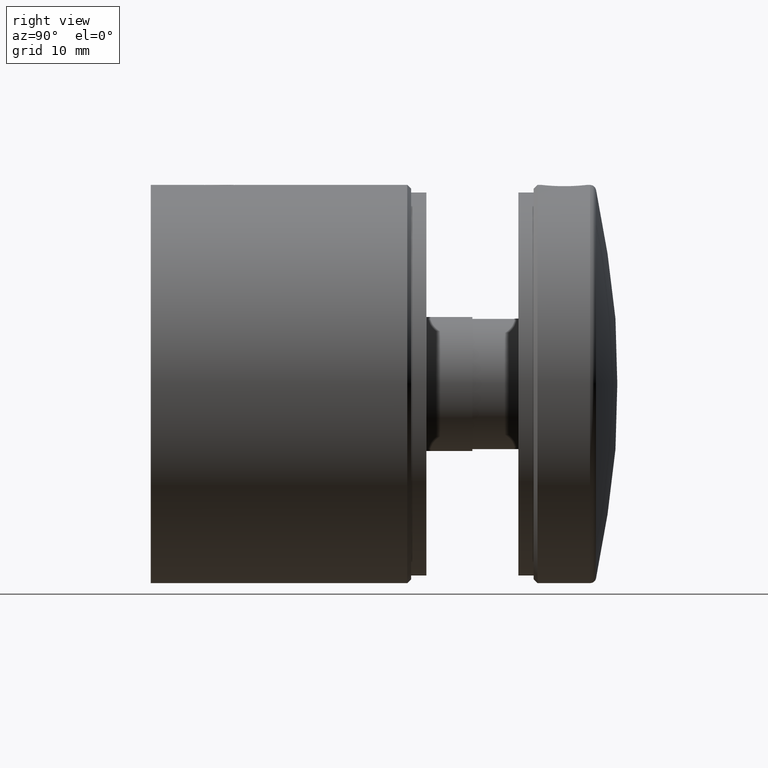
[diagram: clean part render]
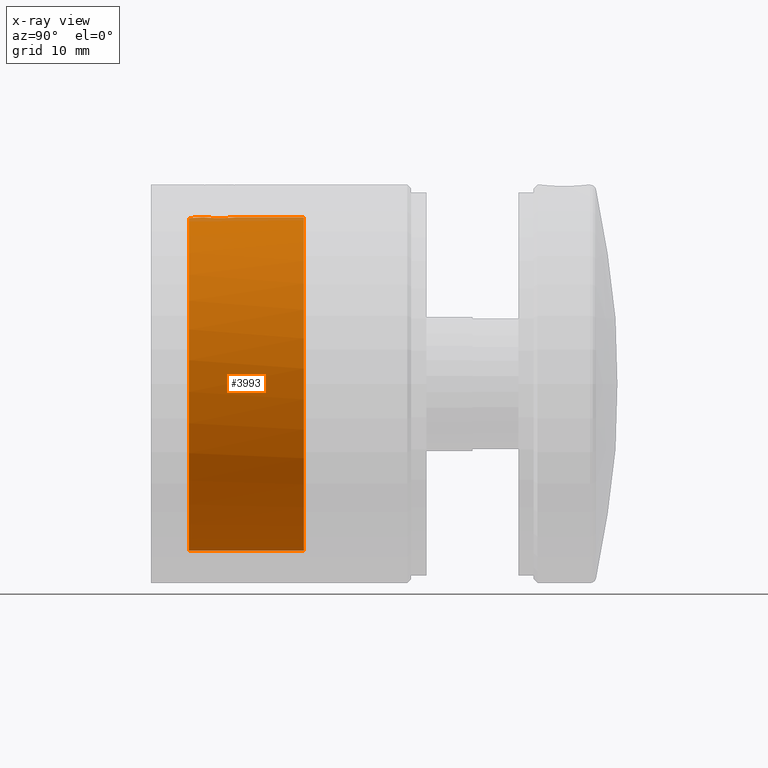
[diagram: x-ray — body ghosted, one internal face saturated and labeled with its STEP entity id]
A machine part, right view, then the same camera in x-ray: the body is ghosted and one INTERNAL B-rep face — a face not visible from any outside direction — is saturated and labeled: STEP entity #3993.
In plain terms, the highlighted cylindrical surface (bore or boss wall) has radius 21.75 mm, axis along (-0, -1, -0).
Its self-contained STEP definition (entity closure, byte-faithful):
#87 = DIRECTION ( 'NONE',  ( 0.000000000000000000, 0.000000000000000000, 1.000000000000000000 ) ) ;
#123 = CARTESIAN_POINT ( 'NONE',  ( 0.000000000000000000, 1.000000000000007772, 0.000000000000000000 ) ) ;
#364 = AXIS2_PLACEMENT_3D ( 'NONE', #1874, #19843, #21648 ) ;
#1025 = AXIS2_PLACEMENT_3D ( 'NONE', #123, #5334, #21714 ) ;
#1249 = CARTESIAN_POINT ( 'NONE',  ( 2.099999999999997868, 5.138822714302124339, 21.64838331146231454 ) ) ;
#1322 = CARTESIAN_POINT ( 'NONE',  ( 1.834164769193666666, 3.941393453948776493, 21.67278129674618725 ) ) ;
#1392 = CARTESIAN_POINT ( 'NONE',  ( 1.677557323868993810, 3.707404910283190524, 21.68607932270053595 ) ) ;
#1471 = CARTESIAN_POINT ( 'NONE',  ( 1.386853782480603092, 3.417158647802673865, 21.70595702399113947 ) ) ;
#1771 = EDGE_LOOP ( 'NONE', ( #2272 ) ) ;
#1874 = CARTESIAN_POINT ( 'NONE',  ( 0.000000000000000000, 0.000000000000000000, 0.000000000000000000 ) ) ;
#2272 = ORIENTED_EDGE ( 'NONE', *, *, #18762, .T. ) ;
#2748 = CARTESIAN_POINT ( 'NONE',  ( -1.582345586245643032, 6.387588446544055998, 21.69258733961678942 ) ) ;
#2915 = CARTESIAN_POINT ( 'NONE',  ( -0.2751048808428505632, 7.086427152041024691, 21.74867734979185130 ) ) ;
#2996 = CARTESIAN_POINT ( 'NONE',  ( 0.2752273321514816518, 7.099850190583571141, 21.74998553564468295 ) ) ;
#3071 = CARTESIAN_POINT ( 'NONE',  ( 2.086370067569942588, 5.275309351184040985, 21.64971775799330445 ) ) ;
#3234 = CARTESIAN_POINT ( 'NONE',  ( 0.9298221290303783082, 3.112040392018067703, 21.73048881496666596 ) ) ;
#3993 = ADVANCED_FACE ( 'NONE', ( #4147, #20759, #7549 ), #4702, .F. ) ;
#4147 = FACE_BOUND ( 'NONE', #20594, .T. ) ;
#4554 = CARTESIAN_POINT ( 'NONE',  ( -1.821326496742648127, 6.054263746972632809, 21.67374199306859950 ) ) ;
#4702 = CYLINDRICAL_SURFACE ( 'NONE', #364, 21.74999999999999289 ) ;
#4712 = CARTESIAN_POINT ( 'NONE',  ( -0.5444946943955960572, 7.032827214500198210, 21.74360077559803983 ) ) ;
#4871 = CARTESIAN_POINT ( 'NONE',  ( 1.050473026080859240, 3.176453429954822827, 21.72491824244271896 ) ) ;
#5166 = VERTEX_POINT ( 'NONE', #16823 ) ;
#5334 = DIRECTION ( 'NONE',  ( -0.000000000000000000, -1.000000000000000000, -0.000000000000000000 ) ) ;
#5816 = CIRCLE ( 'NONE', #17060, 21.74999999999999289 ) ;
#5898 = CARTESIAN_POINT ( 'NONE',  ( 0.000000000000000000, 16.00000000000000000, 21.74999999999999289 ) ) ;
#6294 = CARTESIAN_POINT ( 'NONE',  ( -0.6754374641637941323, 6.993169225652276388, 21.73988222341387200 ) ) ;
#6374 = CARTESIAN_POINT ( 'NONE',  ( -0.1358955096395765283, 7.100074436126980970, 21.75000718693534907 ) ) ;
#6619 = CARTESIAN_POINT ( 'NONE',  ( -0.9297821351355787245, 6.887973652164142813, 21.73049010117087221 ) ) ;
#6692 = CARTESIAN_POINT ( 'NONE',  ( 0.6753324225987497043, 3.006789827440975671, 21.73988591156846084 ) ) ;
#6935 = CARTESIAN_POINT ( 'NONE',  ( -0.9331347341929171479, 3.113684353608795696, 21.73034560432875040 ) ) ;
#7549 = FACE_OUTER_BOUND ( 'NONE', #1771, .T. ) ;
#8119 = CARTESIAN_POINT ( 'NONE',  ( 1.822626473158281080, 6.052073542989715449, 21.67363319944057309 ) ) ;
#8350 = CARTESIAN_POINT ( 'NONE',  ( -2.086159856786573563, 5.277090331791148614, 21.64973828393508981 ) ) ;
#9407 = EDGE_LOOP ( 'NONE', ( #21467 ) ) ;
#9899 = CARTESIAN_POINT ( 'NONE',  ( -1.052659575912668011, 6.822255985429496405, 21.72481029633196670 ) ) ;
#10054 = CARTESIAN_POINT ( 'NONE',  ( 1.581590501153000039, 6.388277296665847871, 21.69263673290183903 ) ) ;
#10139 = CARTESIAN_POINT ( 'NONE',  ( 1.992567059393881568, 5.677214367124503447, 21.65860055147169305 ) ) ;
#10222 = CARTESIAN_POINT ( 'NONE',  ( -2.045121727676634915, 4.450169740814643227, 21.65389103054183551 ) ) ;
#10533 = CARTESIAN_POINT ( 'NONE',  ( -1.281744753354302047, 3.330880715030999806, 21.71250043574855582 ) ) ;
#10602 = CARTESIAN_POINT ( 'NONE',  ( 0.2734553490011445986, 2.913386764543870022, 21.74869547831715977 ) ) ;
#11626 = ORIENTED_EDGE ( 'NONE', *, *, #22502, .T. ) ;
#11963 = CARTESIAN_POINT ( 'NONE',  ( -1.280143908479545622, 6.670311537641098631, 21.71259326215904650 ) ) ;
#12111 = CARTESIAN_POINT ( 'NONE',  ( -1.053646651611794383, 3.178281708453811305, 21.72476406128912885 ) ) ;
#12183 = CARTESIAN_POINT ( 'NONE',  ( 0.1367105962720693846, 2.899868248667024861, 21.75001272081256332 ) ) ;
#13491 = EDGE_CURVE ( 'NONE', #5166, #5166, #14634, .T. ) ;
#13517 = CARTESIAN_POINT ( 'NONE',  ( -1.386202372443735342, 6.583559987472836994, 21.70600391651685257 ) ) ;
#13679 = CARTESIAN_POINT ( 'NONE',  ( 0.5516838227810461071, 7.044615457033726713, 21.74447206496893870 ) ) ;
#13755 = CARTESIAN_POINT ( 'NONE',  ( 1.291146894646880261, 6.678662908253071073, 21.71251039038009267 ) ) ;
#13982 = CARTESIAN_POINT ( 'NONE',  ( -0.5456151976140605209, 2.967503880248212322, 21.74356980566062703 ) ) ;
#14634 = CIRCLE ( 'NONE', #1025, 21.74999999999999289 ) ;
#14930 = CARTESIAN_POINT ( 'NONE',  ( 2.099999999999996980, 4.999999999999999112, 21.64838331146230388 ) ) ;
#15327 = CARTESIAN_POINT ( 'NONE',  ( -1.669212042416140962, 6.281574583616015062, 21.68598748840585699 ) ) ;
#15553 = CARTESIAN_POINT ( 'NONE',  ( -1.836010062360261985, 3.944583851818264986, 21.67262297679972249 ) ) ;
#15569 = VERTEX_POINT ( 'NONE', #5898 ) ;
#15645 = CARTESIAN_POINT ( 'NONE',  ( -0.1407287122436174931, 2.900133673387701450, 21.74998709360977145 ) ) ;
#15790 = CARTESIAN_POINT ( 'NONE',  ( 1.278760185513218239, 3.328596978705252951, 21.71267691021284563 ) ) ;
#16823 = CARTESIAN_POINT ( 'NONE',  ( 0.000000000000000000, 1.000000000000007772, -21.74999999999999289 ) ) ;
#17060 = AXIS2_PLACEMENT_3D ( 'NONE', #21681, #17894, #87 ) ;
#17070 = CARTESIAN_POINT ( 'NONE',  ( 1.670236837092357263, 6.280287041462206510, 21.68590907092830022 ) ) ;
#17140 = CARTESIAN_POINT ( 'NONE',  ( -1.992577234739893566, 5.677189255529857093, 21.65859963717704773 ) ) ;
#17386 = CARTESIAN_POINT ( 'NONE',  ( 2.032980505208917599, 5.543806549373645254, 21.65479645078803728 ) ) ;
#17459 = CARTESIAN_POINT ( 'NONE',  ( 2.044128855569776526, 4.446515183839025553, 21.65398685598034234 ) ) ;
#17894 = DIRECTION ( 'NONE',  ( 0.000000000000000000, 1.000000000000000000, 0.000000000000000000 ) ) ;
#18762 = EDGE_CURVE ( 'NONE', #15569, #15569, #5816, .T. ) ;
#18954 = CARTESIAN_POINT ( 'NONE',  ( -2.099949600343860467, 5.137853169639274853, 21.64838820047730650 ) ) ;
#19112 = CARTESIAN_POINT ( 'NONE',  ( -1.887126034545843378, 5.931506658026682643, 21.66804231142419113 ) ) ;
#19194 = CARTESIAN_POINT ( 'NONE',  ( -2.032339381275455992, 5.546295377389207637, 21.65485689978740425 ) ) ;
#19356 = CARTESIAN_POINT ( 'NONE',  ( 2.099999999999997868, 5.000000000000000000, 21.64838331146231099 ) ) ;
#19430 = CARTESIAN_POINT ( 'NONE',  ( -0.6790613762871074988, 3.008065564027619487, 21.73976853977434942 ) ) ;
#19843 = DIRECTION ( 'NONE',  ( -0.000000000000000000, -1.000000000000000000, -0.000000000000000000 ) ) ;
#20370 = VERTEX_POINT ( 'NONE', #14930 ) ;
#20594 = EDGE_LOOP ( 'NONE', ( #11626 ) ) ;
#20759 = FACE_OUTER_BOUND ( 'NONE', #9407, .T. ) ;
#20771 = CARTESIAN_POINT ( 'NONE',  ( 2.099999999999997868, 5.000000000000000000, 21.64838331146231099 ) ) ;
#20854 = CARTESIAN_POINT ( 'NONE',  ( 1.887133650680468344, 5.931487718486305738, 21.66804162629518515 ) ) ;
#21160 = CARTESIAN_POINT ( 'NONE',  ( 2.099999999999997424, 4.722354571395747769, 21.64838331146230388 ) ) ;
#21246 = CARTESIAN_POINT ( 'NONE',  ( -1.389648632982440679, 3.419614982696230321, 21.70577740054336147 ) ) ;
#21467 = ORIENTED_EDGE ( 'NONE', *, *, #13491, .T. ) ;
#21648 = DIRECTION ( 'NONE',  ( 0.000000000000000000, 0.000000000000000000, -1.000000000000000000 ) ) ;
#21681 = CARTESIAN_POINT ( 'NONE',  ( 0.000000000000000000, 16.00000000000000000, 0.000000000000000000 ) ) ;
#21714 = DIRECTION ( 'NONE',  ( 0.000000000000000000, 0.000000000000000000, -1.000000000000000000 ) ) ;
#22266 = B_SPLINE_CURVE_WITH_KNOTS ( 'NONE', 3,
 ( #20771, #1249, #3071, #17386, #10139, #20854, #8119, #17070, #10054, #13755, #22651, #13679, #2996, #6374, #2915, #4712, #6294, #6619, #9899, #11963, #13517, #2748, #15327, #4554, #19112, #17140, #19194, #8350, #18954, #22563, #10222, #15553, #22726, #21246, #10533, #12111, #6935, #19430, #13982, #23033, #15645, #12183, #10602, #23184, #6692, #3234, #4871, #15790, #1471, #1392, #1322, #17459, #21160, #19356 ),
 .UNSPECIFIED., .T., .F.,
 ( 4, 2, 2, 2, 2, 2, 2, 2, 2, 2, 2, 2, 2, 2, 2, 2, 2, 2, 2, 2, 2, 2, 2, 2, 2, 2, 4 ),
 ( 0.000000000000000000, 0.0004105382346277378167, 0.0008210764692554756335, 0.001231614703883213450, 0.001642152938510951267, 0.002463229407766429069, 0.003284305877021907304, 0.003694844111649645772, 0.004105382346277384673, 0.004515920580905123140, 0.004926458815532860740, 0.005336997050160600074, 0.005747535284788338542, 0.006158073519416077009, 0.006568611754043815476, 0.007389688223299295880, 0.008210764692554776284, 0.008621302927182517353, 0.009031841161810258423, 0.009442379396437999492, 0.009852917631065738827, 0.01026345586569347816, 0.01067399410032121923, 0.01108453233494896030, 0.01149507056957670137, 0.01231614703883218177, 0.01313722350808766044 ),
 .UNSPECIFIED. ) ;
#22502 = EDGE_CURVE ( 'NONE', #20370, #20370, #22266, .T. ) ;
#22563 = CARTESIAN_POINT ( 'NONE',  ( -2.100100375902282934, 4.726603415180694157, 21.64837357450517175 ) ) ;
#22651 = CARTESIAN_POINT ( 'NONE',  ( 1.056987721572510308, 6.835097916707577603, 21.72577265325626072 ) ) ;
#22726 = CARTESIAN_POINT ( 'NONE',  ( -1.679765933844916903, 3.710291927695664072, 21.68590486809005213 ) ) ;
#23033 = CARTESIAN_POINT ( 'NONE',  ( -0.2771574582692129529, 2.913874365240851638, 21.74864840813860312 ) ) ;
#23184 = CARTESIAN_POINT ( 'NONE',  ( 0.5419809510207157510, 2.966532697334742785, 21.74366090347256630 ) ) ;